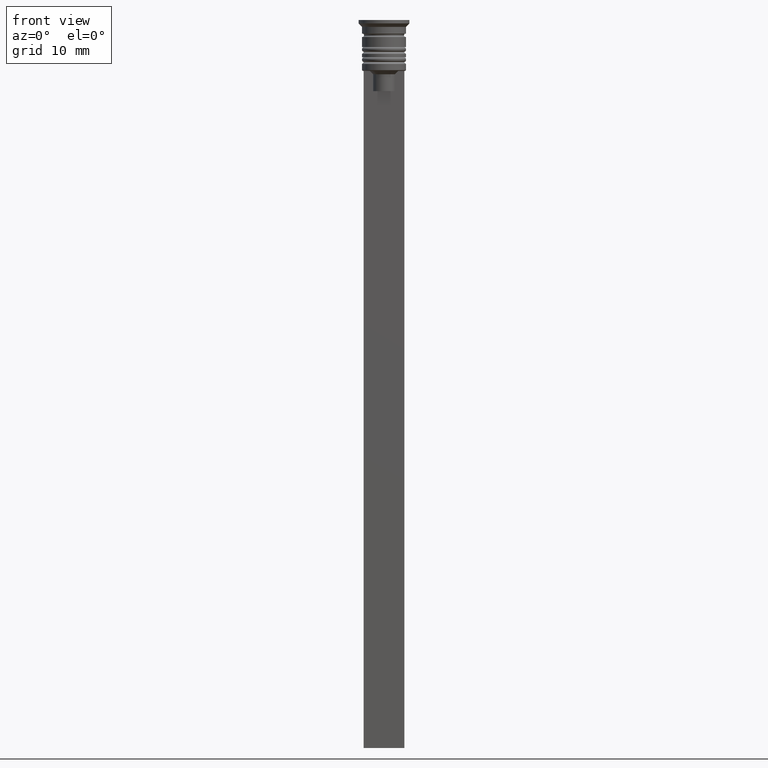
[diagram: clean part render]
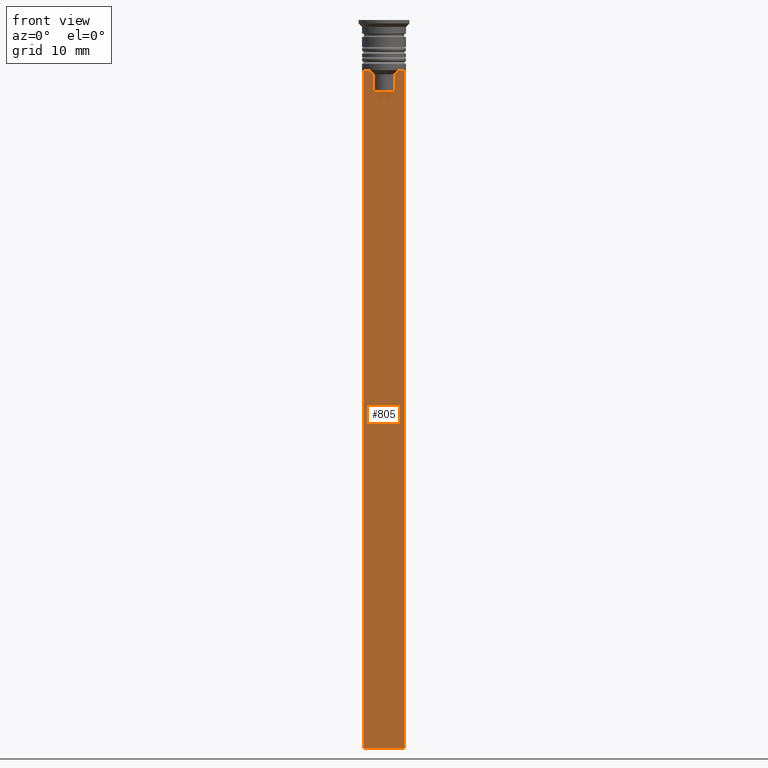
[diagram: same view with one face highlighted and labeled with its STEP entity id]
A machine part, front view. The second image highlights one B-rep face of the part: STEP entity #805.
In plain terms, the highlighted planar face has unit normal (0, -1, -0).
Its self-contained STEP definition (entity closure, byte-faithful):
#19 = VERTEX_POINT ( 'NONE', #1543 ) ;
#33 = CARTESIAN_POINT ( 'NONE',  ( -1.782527878033862478, -0.3500000000000000333, -7.833794036819864637 ) ) ;
#70 = VECTOR ( 'NONE', #2059, 1000.000000000000000 ) ;
#85 = VERTEX_POINT ( 'NONE', #1968 ) ;
#128 = EDGE_CURVE ( 'NONE', #1057, #1023, #1780, .T. ) ;
#153 = CARTESIAN_POINT ( 'NONE',  ( 1.612451549659713601, -0.3500000000000000333, 0.000000000000000000 ) ) ;
#159 = EDGE_CURVE ( 'NONE', #849, #413, #922, .T. ) ;
#180 = EDGE_CURVE ( 'NONE', #19, #85, #773, .T. ) ;
#197 = ORIENTED_EDGE ( 'NONE', *, *, #1467, .F. ) ;
#252 = VECTOR ( 'NONE', #1241, 1000.000000000000000 ) ;
#271 = DIRECTION ( 'NONE',  ( 1.000000000000000000, 0.000000000000000000, 0.000000000000000000 ) ) ;
#327 = LINE ( 'NONE', #153, #1690 ) ;
#351 = CARTESIAN_POINT ( 'NONE',  ( -1.952043732028444500, -0.3500000000000000333, -7.667018567316270961 ) ) ;
#399 = CARTESIAN_POINT ( 'NONE',  ( 1.782523989086206795, -0.3500000000000000333, -7.833797837268088315 ) ) ;
#413 = VERTEX_POINT ( 'NONE', #1047 ) ;
#445 = EDGE_CURVE ( 'NONE', #413, #1320, #1362, .T. ) ;
#526 = LINE ( 'NONE', #1040, #70 ) ;
#535 = DIRECTION ( 'NONE',  ( 0.000000000000000000, 0.000000000000000000, -1.000000000000000000 ) ) ;
#600 = ORIENTED_EDGE ( 'NONE', *, *, #1859, .F. ) ;
#614 = DIRECTION ( 'NONE',  ( 0.000000000000000000, 0.000000000000000000, -1.000000000000000000 ) ) ;
#625 = VECTOR ( 'NONE', #1293, 1000.000000000000000 ) ;
#637 = CARTESIAN_POINT ( 'NONE',  ( 2.999999999999995559, -0.3500000000000000333, -1.459304675784417915 ) ) ;
#674 = EDGE_CURVE ( 'NONE', #849, #1501, #526, .T. ) ;
#708 = FACE_OUTER_BOUND ( 'NONE', #1451, .T. ) ;
#709 = VERTEX_POINT ( 'NONE', #1866 ) ;
#744 = LINE ( 'NONE', #1078, #799 ) ;
#749 = LINE ( 'NONE', #1233, #252 ) ;
#773 = LINE ( 'NONE', #1243, #625 ) ;
#799 = VECTOR ( 'NONE', #614, 1000.000000000000000 ) ;
#805 = ADVANCED_FACE ( 'NONE', ( #708 ), #1909, .T. ) ;
#822 = DIRECTION ( 'NONE',  ( 0.000000000000000000, 0.000000000000000000, -1.000000000000000000 ) ) ;
#849 = VERTEX_POINT ( 'NONE', #1094 ) ;
#875 = ORIENTED_EDGE ( 'NONE', *, *, #445, .F. ) ;
#922 = LINE ( 'NONE', #1610, #1933 ) ;
#1023 = VERTEX_POINT ( 'NONE', #1818 ) ;
#1028 = VECTOR ( 'NONE', #271, 1000.000000000000000 ) ;
#1040 = CARTESIAN_POINT ( 'NONE',  ( -3.000000000000004441, -0.3500000000000000333, -1.459304675784417915 ) ) ;
#1047 = CARTESIAN_POINT ( 'NONE',  ( -2.121320343559647270, -0.3500000000000000333, -7.500000000000000000 ) ) ;
#1057 = VERTEX_POINT ( 'NONE', #1828 ) ;
#1078 = CARTESIAN_POINT ( 'NONE',  ( -1.612451549659713601, -0.3500000000000000333, 0.000000000000000000 ) ) ;
#1094 = CARTESIAN_POINT ( 'NONE',  ( -3.000000000000004441, -0.3500000000000000333, -7.500000000000000000 ) ) ;
#1176 = DIRECTION ( 'NONE',  ( 0.000000000000000000, -1.000000000000000000, -0.000000000000000000 ) ) ;
#1192 = ORIENTED_EDGE ( 'NONE', *, *, #180, .F. ) ;
#1213 = EDGE_CURVE ( 'NONE', #709, #19, #1422, .T. ) ;
#1233 = CARTESIAN_POINT ( 'NONE',  ( 2.999999999999995559, -0.3500000000000000333, -107.5000000000000000 ) ) ;
#1241 = DIRECTION ( 'NONE',  ( -1.000000000000000000, 0.000000000000000000, 0.000000000000000000 ) ) ;
#1243 = CARTESIAN_POINT ( 'NONE',  ( 2.999999999999995559, -0.3500000000000000333, -7.500000000000000000 ) ) ;
#1293 = DIRECTION ( 'NONE',  ( 1.000000000000000000, 0.000000000000000000, 0.000000000000000000 ) ) ;
#1294 = AXIS2_PLACEMENT_3D ( 'NONE', #1542, #1176, #535 ) ;
#1310 = EDGE_CURVE ( 'NONE', #1320, #1057, #744, .T. ) ;
#1320 = VERTEX_POINT ( 'NONE', #1770 ) ;
#1347 = DIRECTION ( 'NONE',  ( -0.000000000000000000, -0.000000000000000000, 1.000000000000000000 ) ) ;
#1362 = B_SPLINE_CURVE_WITH_KNOTS ( 'NONE', 3,
 ( #1539, #351, #33, #1713 ),
 .UNSPECIFIED., .F., .F.,
 ( 4, 4 ),
 ( 0.003684653461239337929, 0.004398058763641257696 ),
 .UNSPECIFIED. ) ;
#1369 = ORIENTED_EDGE ( 'NONE', *, *, #674, .T. ) ;
#1375 = ORIENTED_EDGE ( 'NONE', *, *, #1635, .F. ) ;
#1411 = CARTESIAN_POINT ( 'NONE',  ( 1.952040775369266346, -0.3500000000000000333, -7.667021484535463394 ) ) ;
#1422 = B_SPLINE_CURVE_WITH_KNOTS ( 'NONE', 3,
 ( #1568, #399, #1411, #1753 ),
 .UNSPECIFIED., .F., .F.,
 ( 4, 4 ),
 ( 0.008600796474521228696, 0.009317962624906526645 ),
 .UNSPECIFIED. ) ;
#1430 = ORIENTED_EDGE ( 'NONE', *, *, #159, .F. ) ;
#1451 = EDGE_LOOP ( 'NONE', ( #875, #1430, #1369, #1375, #600, #1192, #1613, #197, #1953, #1984 ) ) ;
#1467 = EDGE_CURVE ( 'NONE', #1023, #709, #327, .T. ) ;
#1476 = LINE ( 'NONE', #637, #2014 ) ;
#1501 = VERTEX_POINT ( 'NONE', #1574 ) ;
#1539 = CARTESIAN_POINT ( 'NONE',  ( -2.121320343559647270, -0.3500000000000000333, -7.500000000000000000 ) ) ;
#1542 = CARTESIAN_POINT ( 'NONE',  ( 2.999999999999995559, -0.3500000000000000333, -1.459304675784417915 ) ) ;
#1543 = CARTESIAN_POINT ( 'NONE',  ( 2.121320343559647270, -0.3500000000000000333, -7.500000000000000000 ) ) ;
#1568 = CARTESIAN_POINT ( 'NONE',  ( 1.612451549659713601, -0.3500000000000000333, -8.000000000000000000 ) ) ;
#1574 = CARTESIAN_POINT ( 'NONE',  ( -3.000000000000004441, -0.3500000000000000333, -107.5000000000000000 ) ) ;
#1610 = CARTESIAN_POINT ( 'NONE',  ( 2.999999999999995559, -0.3500000000000000333, -7.500000000000000000 ) ) ;
#1613 = ORIENTED_EDGE ( 'NONE', *, *, #1213, .F. ) ;
#1634 = DIRECTION ( 'NONE',  ( 1.000000000000000000, 0.000000000000000000, 0.000000000000000000 ) ) ;
#1635 = EDGE_CURVE ( 'NONE', #1950, #1501, #749, .T. ) ;
#1690 = VECTOR ( 'NONE', #1347, 1000.000000000000000 ) ;
#1713 = CARTESIAN_POINT ( 'NONE',  ( -1.612451549659713601, -0.3500000000000000333, -8.000000000000000000 ) ) ;
#1735 = CARTESIAN_POINT ( 'NONE',  ( 2.999999999999995559, -0.3500000000000000333, -107.5000000000000000 ) ) ;
#1753 = CARTESIAN_POINT ( 'NONE',  ( 2.121320343559647270, -0.3500000000000000333, -7.500000000000000000 ) ) ;
#1770 = CARTESIAN_POINT ( 'NONE',  ( -1.612451549659713601, -0.3500000000000000333, -8.000000000000000000 ) ) ;
#1780 = LINE ( 'NONE', #1803, #1028 ) ;
#1803 = CARTESIAN_POINT ( 'NONE',  ( 0.000000000000000000, -0.3500000000000000333, -10.49999999999999822 ) ) ;
#1818 = CARTESIAN_POINT ( 'NONE',  ( 1.612451549659713601, -0.3500000000000000333, -10.49999999999999822 ) ) ;
#1828 = CARTESIAN_POINT ( 'NONE',  ( -1.612451549659713601, -0.3500000000000000333, -10.49999999999999822 ) ) ;
#1859 = EDGE_CURVE ( 'NONE', #85, #1950, #1476, .T. ) ;
#1866 = CARTESIAN_POINT ( 'NONE',  ( 1.612451549659713601, -0.3500000000000000333, -8.000000000000000000 ) ) ;
#1909 = PLANE ( 'NONE',  #1294 ) ;
#1933 = VECTOR ( 'NONE', #1634, 1000.000000000000000 ) ;
#1950 = VERTEX_POINT ( 'NONE', #1735 ) ;
#1953 = ORIENTED_EDGE ( 'NONE', *, *, #128, .F. ) ;
#1968 = CARTESIAN_POINT ( 'NONE',  ( 2.999999999999995559, -0.3500000000000000333, -7.500000000000000000 ) ) ;
#1984 = ORIENTED_EDGE ( 'NONE', *, *, #1310, .F. ) ;
#2014 = VECTOR ( 'NONE', #822, 1000.000000000000000 ) ;
#2059 = DIRECTION ( 'NONE',  ( 0.000000000000000000, 0.000000000000000000, -1.000000000000000000 ) ) ;